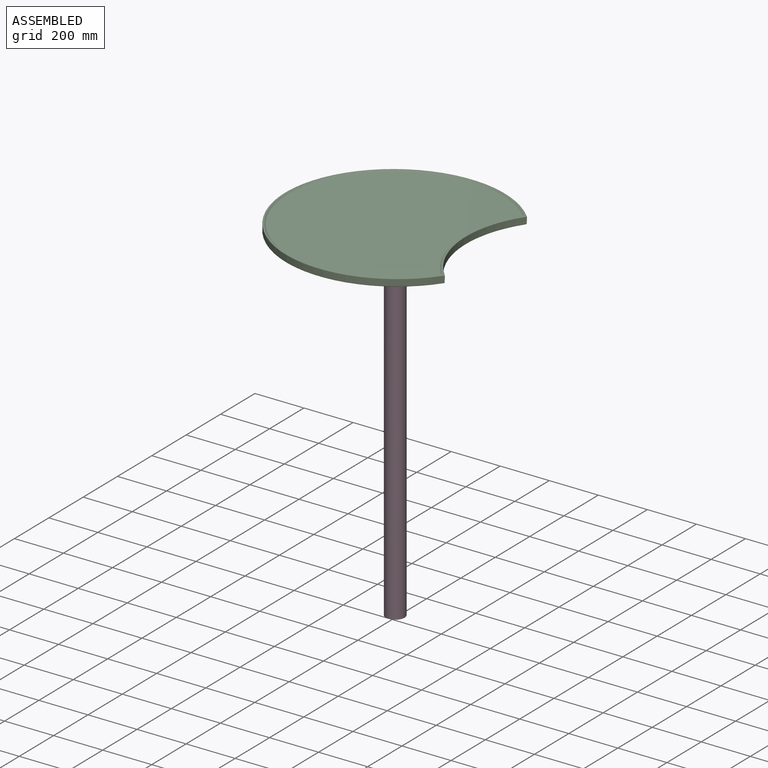
[diagram: assembled view]
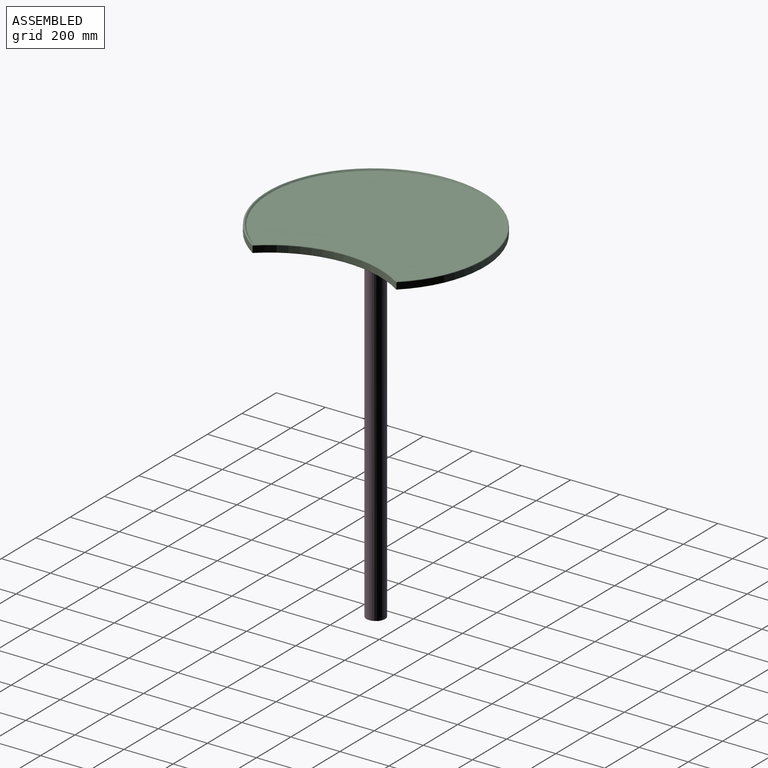
[diagram: assembled view, second angle]
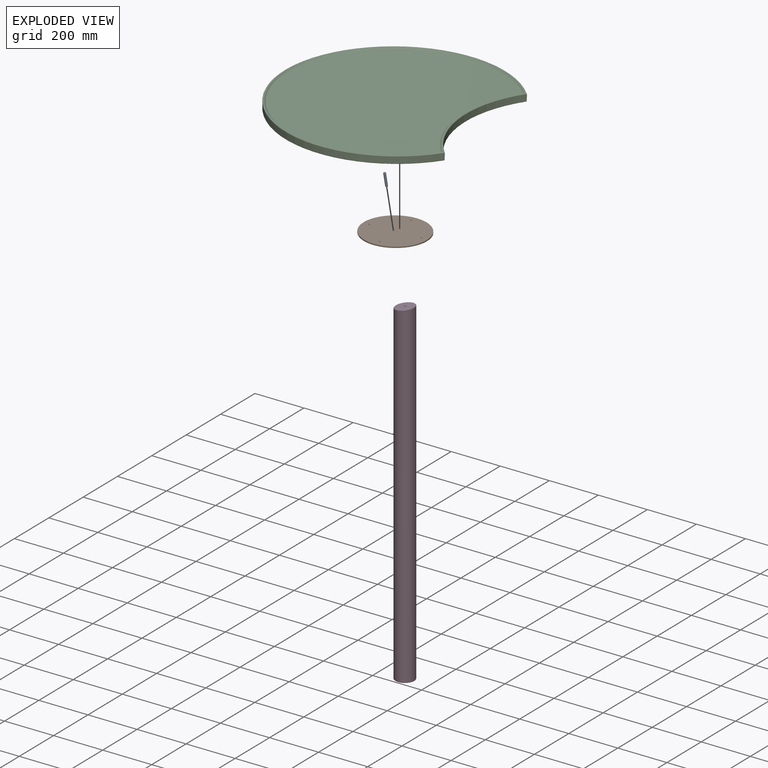
[diagram: exploded view]
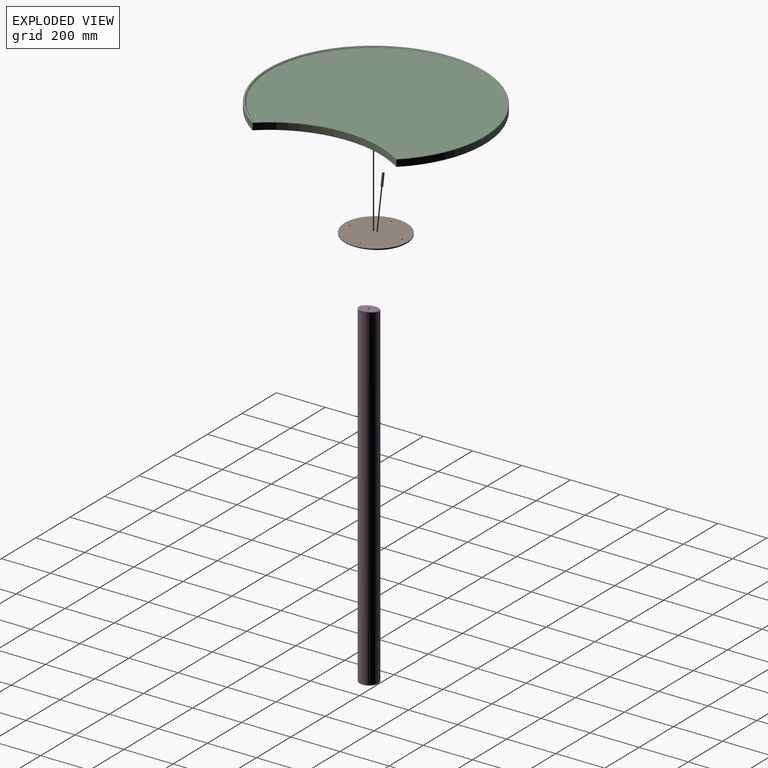
[diagram: exploded view, second angle]
ASSEMBLY  parts=4 mates=3
PART A: 5 faces, bbox 9.5x9.5x50.8 mm
  f0: cylinder r=4.76mm len=48.77mm, axis (0,0,-1), area 1459.3mm2, adj f3,f4
  f1: plane 6.99x6.99mm, normal (0,0,1), area 38.3mm2, adj f3
  f2: plane 8x8mm, normal (0,0,-1), area 50.3mm2, adj f4
  f3: cone r=3.49mm half-angle=45deg, axis (0,0,-1), area 46.6mm2, adj f0,f1
  f4: cone r=4.76mm half-angle=45deg, axis (0,0,1), area 29.7mm2, adj f0,f2
PART B: 12 faces, bbox 254x254x49 mm
  f0: cylinder r=38.1mm len=76.2mm, axis (0,0,-1), area 6904.5mm2, adj f4,f7
  f1: plane 70.16x70.16mm, normal (0,0.17,-0.98), area 3852.5mm2, adj f2,f4
  f2: cylinder r=4.76mm len=26.67mm, axis (0,0.17,-0.98), area 760.1mm2, adj f1,f3
  f3: plane 9.53x9.38mm, normal (0,0.17,-0.98), area 71.3mm2, adj f2
  f4: bspline ~76.2x76.2mm, area 989.2mm2, adj f0,f1
  f5: cylinder r=127mm len=254mm, axis (0,0,-1), area 3800.3mm2, adj f6,f7
  f6: plane 254x254mm, normal (0,0,1), area 50544.1mm2, adj f5,f8,f9,f10,f11
  f7: plane 254x254mm, normal (0,0,-1), area 45983.7mm2, adj f0,f5,f8,f9,f10,f11
  f8: cylinder r=3.17mm len=6.35mm, axis (0,0,1), area 95mm2, adj f6,f7
  f9: cylinder r=3.17mm len=6.35mm, axis (0,0,1), area 95mm2, adj f6,f7
  f10: cylinder r=3.17mm len=6.35mm, axis (0,0,1), area 95mm2, adj f6,f7
  f11: cylinder r=3.17mm len=6.35mm, axis (0,0,1), area 95mm2, adj f6,f7
PART C: 19 faces, bbox 962.2x862.1x30.2 mm
  f0: cylinder r=444.5mm len=889mm, axis (0,0,-1), area 54975.8mm2, adj f8,f11,f13,f16
  f1: plane 883.92x791.89mm, normal (0,0,-1), area 490077.3mm2, adj f7,f8,f17
  f2: cylinder r=444.5mm len=549.9mm, axis (0,0,-1), area 14874mm2, adj f7,f11,f12,f13
  f3: plane 883.92x791.89mm, normal (0,0,1), area 10526.1mm2, adj f5,f6,f12,f16
  f4: plane 866.78x772.36mm, normal (0,0,1), area 517202.6mm2, adj f5,f6
  f5: cone r=450.85mm half-angle=45deg, axis (0,0,-1), area 4005.7mm2, adj f3,f4,f6
  f6: cone r=433.39mm half-angle=45deg, axis (0,0,1), area 14406.4mm2, adj f3,f4,f5
  f7: torus R=447.04mm, axis (0,0,1), area 2370.9mm2, adj f1,f2,f9,f10
  f8: torus R=441.96mm, axis (0,0,1), area 8726.7mm2, adj f0,f1,f9,f10
  f9: sphere r=2.54mm, area 8.7mm2, adj f7,f8,f11
  f10: sphere r=2.54mm, area 8.7mm2, adj f7,f8,f13
  f11: cylinder r=2.54mm len=25.08mm, axis (0,0,-1), area 85.6mm2, adj f0,f2,f9,f14
  f12: torus R=447.04mm, axis (0,0,1), area 2370.9mm2, adj f2,f3,f14,f15
  f13: cylinder r=2.54mm len=25.08mm, axis (0,0,1), area 85.6mm2, adj f0,f2,f10,f15
  f14: sphere r=2.54mm, area 8.7mm2, adj f11,f12,f16
  f15: sphere r=2.54mm, area 8.7mm2, adj f12,f13,f16
  f16: torus R=441.96mm, axis (0,0,1), area 8726.7mm2, adj f0,f3,f14,f15
  f17: cylinder r=127mm len=254mm, axis (0,0,-1), area 2533.5mm2, adj f1,f18
  f18: plane 254x254mm, normal (0,0,-1), area 50670.7mm2, adj f17
PART D: 6 faces, bbox 76.2x76.2x1377.9 mm
  f0: cylinder r=38.1mm len=1375.78mm, axis (0,0,1), area 327825.9mm2, adj f1,f5
  f1: plane 76.2x76.2mm, normal (0,0,-1), area 4560.4mm2, adj f0
  f2: plane 71.95x71.95mm, normal (-0.17,0,0.98), area 4055.3mm2, adj f3,f5
  f3: cylinder r=4.76mm len=26.67mm, axis (-0.17,0,0.98), area 760.1mm2, adj f2,f4
  f4: plane 9.53x9.38mm, normal (-0.17,0,0.98), area 71.3mm2, adj f3
  f5: bspline ~76.2x76.2mm, area 705.1mm2, adj f0,f2
PLACE A rot(axis=(0,-1,0),10deg) t=(101.14,-205.92,317.29)mm
PLACE B rot(axis=(-0.01,-0.01,-1),85.8deg) t=(96.73,-205.92,342.31)mm
PLACE C rot(axis=(-0.01,0.01,1),94.2deg) t=(96.71,-205.41,381.99)mm
PLACE D t=(96.73,-205.92,367.71)mm fixed
MATE revolute B.f2 <-> A.f0  axis (0.17,0,-0.98) through (92.32,-205.92,367.32)mm
MATE revolute A.f0 <-> D.f3  axis (0.17,0,-0.98) through (101.14,-205.92,317.29)mm
MATE fastened C.f0 <-> B.f0  axis (0,-0.01,-1) through (96.71,-205.37,385.16)mm
